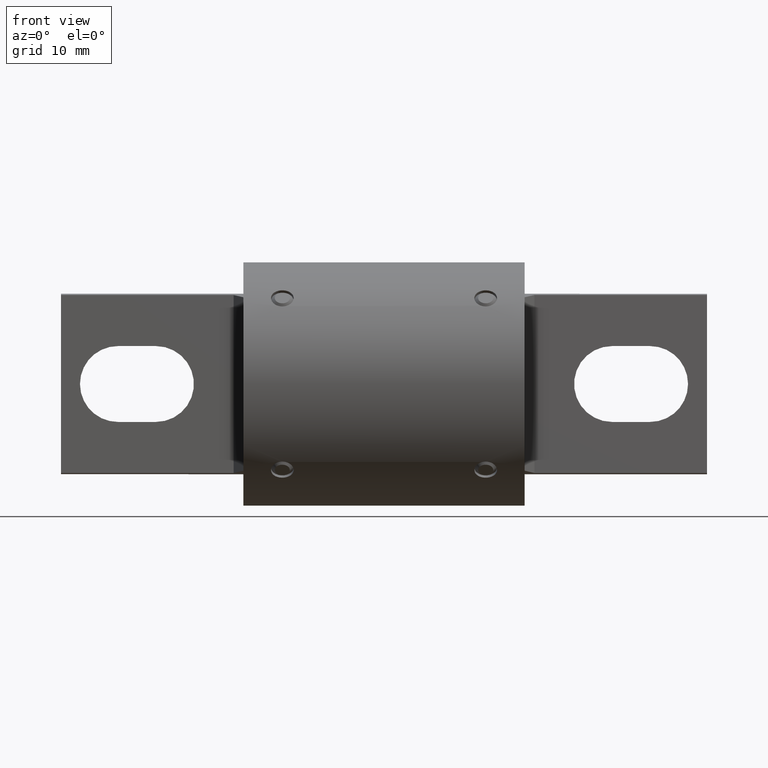
[diagram: clean part render]
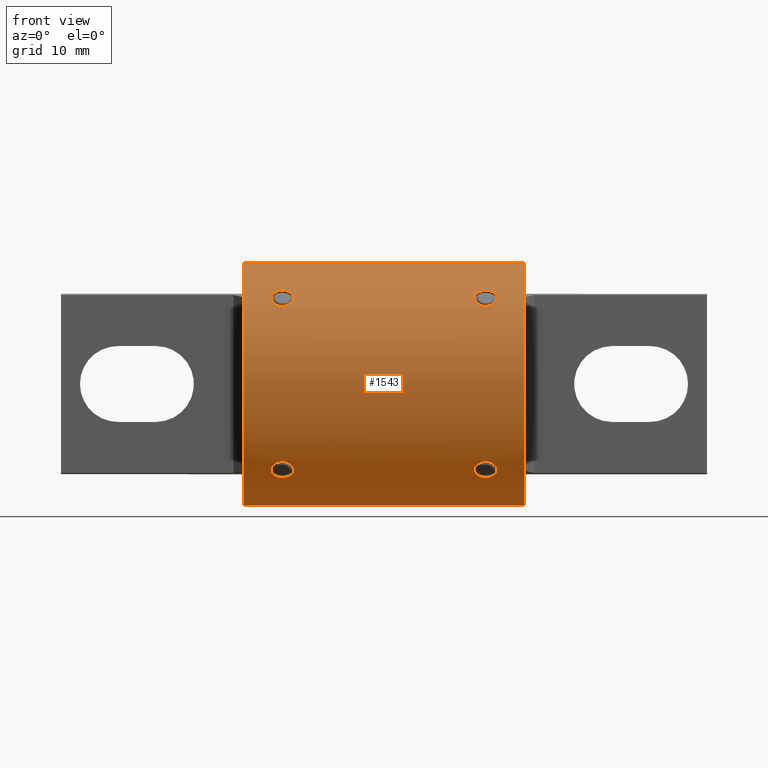
[diagram: same view with one face highlighted and labeled with its STEP entity id]
A machine part, front view. The second image highlights one B-rep face of the part: STEP entity #1543.
In plain terms, the highlighted cylindrical surface (partial cylindrical patch) has radius 12.7 mm, axis along (-1, -0, -0).
Its self-contained STEP definition (entity closure, byte-faithful):
#24 = FACE_BOUND ( 'NONE', #4443, .T. ) ;
#44 = CARTESIAN_POINT ( 'NONE',  ( 0.3944677947010658000, -0.3813228052171436200, 0.3234169151341029800 ) ) ;
#68 = CARTESIAN_POINT ( 'NONE',  ( -0.4468748784621186500, -0.3260412126489676800, 0.3790994276910557000 ) ) ;
#69 = CARTESIAN_POINT ( 'NONE',  ( 0.4180999999999999700, -0.3851418905577689800, -0.3188506298215317800 ) ) ;
#85 = CARTESIAN_POINT ( 'NONE',  ( 0.3944677947010658500, -0.3234169151340990900, -0.3813228052171469500 ) ) ;
#149 = ORIENTED_EDGE ( 'NONE', *, *, #4687, .F. ) ;
#177 = ORIENTED_EDGE ( 'NONE', *, *, #5175, .T. ) ;
#179 = CARTESIAN_POINT ( 'NONE',  ( 0.4649797884676673500, -0.3579061582054254800, 0.3492012578480499500 ) ) ;
#184 = CARTESIAN_POINT ( 'NONE',  ( -0.4180999999999999700, -0.3188506298215304500, -0.3851418905577701500 ) ) ;
#185 = CARTESIAN_POINT ( 'NONE',  ( 0.4649701833306483800, -0.3579569404096281100, -0.3491492021709419200 ) ) ;
#192 = EDGE_CURVE ( 'NONE', #4633, #4461, #1598, .T. ) ;
#205 = CARTESIAN_POINT ( 'NONE',  ( -0.4556273034645854100, -0.3733197307448354300, -0.3326433932274904800 ) ) ;
#262 = CARTESIAN_POINT ( 'NONE',  ( -0.4180999999999999200, -0.3851418905577667600, 0.3188506298215345000 ) ) ;
#265 = CARTESIAN_POINT ( 'NONE',  ( -0.4057473084892742100, -0.3198180067965569200, -0.3843461624909740900 ) ) ;
#373 = CARTESIAN_POINT ( 'NONE',  ( 0.4180999999999999700, -0.3188506298215304500, -0.3851418905577701500 ) ) ;
#381 = EDGE_CURVE ( 'NONE', #3641, #558, #2180, .T. ) ;
#398 = CARTESIAN_POINT ( 'NONE',  ( 0.4469494148999879600, -0.3260940860301482200, -0.3790533443462235100 ) ) ;
#405 = CARTESIAN_POINT ( 'NONE',  ( -0.3806119987300331500, -0.3733425342060931500, 0.3326171116410980300 ) ) ;
#446 = EDGE_CURVE ( 'NONE', #4461, #4633, #3035, .T. ) ;
#468 = CARTESIAN_POINT ( 'NONE',  ( 0.5780999999999999500, 0.0000000000000000000, 0.5000000000000000000 ) ) ;
#469 = CARTESIAN_POINT ( 'NONE',  ( 0.3806265758342109500, -0.3733551568638238100, 0.3326029144379404300 ) ) ;
#477 = CARTESIAN_POINT ( 'NONE',  ( -0.4303795581345331000, -0.3843623708052776300, 0.3197986095693312600 ) ) ;
#485 = CARTESIAN_POINT ( 'NONE',  ( -0.4057473084892742100, -0.3843461624909706400, 0.3198180067965608600 ) ) ;
#498 = CARTESIAN_POINT ( 'NONE',  ( -0.3771676171850029700, -0.3699063082191747500, -0.3364543442959049300 ) ) ;
#499 = CARTESIAN_POINT ( 'NONE',  ( -0.4303618332115015700, -0.3197948178100611900, 0.3843655152403495100 ) ) ;
#500 = CARTESIAN_POINT ( 'NONE',  ( 0.3944818595847876000, -0.3813281677303936900, -0.3234105800673970400 ) ) ;
#540 = DIRECTION ( 'NONE',  ( 0.0000000000000000000, 0.0000000000000000000, -1.000000000000000000 ) ) ;
#542 = EDGE_CURVE ( 'NONE', #755, #814, #2671, .T. ) ;
#558 = VERTEX_POINT ( 'NONE', #2237 ) ;
#563 = CARTESIAN_POINT ( 'NONE',  ( -0.4058120634262547500, -0.3198043786849212900, 0.3843574563774750400 ) ) ;
#599 = CARTESIAN_POINT ( 'NONE',  ( 0.4590644586123955900, -0.3698699448007831100, 0.3364944664965430200 ) ) ;
#607 = CARTESIAN_POINT ( 'NONE',  ( -0.4469304761330199500, -0.3260829876836042800, -0.3790628668080755500 ) ) ;
#625 = CARTESIAN_POINT ( 'NONE',  ( -0.4649727836622381000, -0.3492148569375020900, -0.3578916304014156900 ) ) ;
#669 = CARTESIAN_POINT ( 'NONE',  ( 0.4555467046549049300, -0.3733779895294406800, -0.3325772156917288200 ) ) ;
#706 = CARTESIAN_POINT ( 'NONE',  ( -0.4119811595538264100, -0.3188506298215277300, 0.3851418905577722600 ) ) ;
#743 = CARTESIAN_POINT ( 'NONE',  ( 0.4468987945994440900, -0.3790785663980416600, -0.3260646683710384800 ) ) ;
#755 = VERTEX_POINT ( 'NONE', #4100 ) ;
#814 = VERTEX_POINT ( 'NONE', #4061 ) ;
#833 = CARTESIAN_POINT ( 'NONE',  ( -0.3724357695896449200, -0.3621255142926018100, 0.3448150430999874500 ) ) ;
#870 = CARTESIAN_POINT ( 'NONE',  ( 0.3712227897960115300, -0.3492391303951684600, 0.3578679438257777500 ) ) ;
#871 = B_SPLINE_CURVE_WITH_KNOTS ( 'NONE', 3,
 ( #184, #3529, #4378, #1857, #607, #1470, #4396, #1876, #625, #3148, #5221, #2731, #205, #1070, #5240, #2331, #4414, #1896 ),
 .UNSPECIFIED., .F., .F.,
 ( 4, 2, 2, 2, 2, 2, 2, 2, 4 ),
 ( 0.0000000000000000000, 0.0004655599652297695300, 0.0009311199304595390600, 0.001396679895689308600, 0.001862239860919078100, 0.002327799826148847400, 0.002793359791378617200, 0.003258919756608386900, 0.003724479721838156200 ),
 .UNSPECIFIED. ) ;
#888 = EDGE_CURVE ( 'NONE', #814, #755, #1891, .T. ) ;
#916 = CARTESIAN_POINT ( 'NONE',  ( -0.4469304761330200000, -0.3790628668080721100, 0.3260829876836082700 ) ) ;
#933 = CARTESIAN_POINT ( 'NONE',  ( -0.3892505851000119800, -0.3260940860301481700, -0.3790533443462236800 ) ) ;
#935 = CARTESIAN_POINT ( 'NONE',  ( -0.4180999999999999700, -0.3188506298215277300, 0.3851418905577722600 ) ) ;
#938 = CARTESIAN_POINT ( 'NONE',  ( 0.3805726965354145300, -0.3733197307448355400, -0.3326433932274904800 ) ) ;
#1044 = CARTESIAN_POINT ( 'NONE',  ( 0.4469494148999880200, -0.3790533443462202300, 0.3260940860301521100 ) ) ;
#1070 = CARTESIAN_POINT ( 'NONE',  ( -0.4468748784621186500, -0.3790994276910521500, -0.3260412126489716200 ) ) ;
#1094 = VERTEX_POINT ( 'NONE', #3028 ) ;
#1122 = CARTESIAN_POINT ( 'NONE',  ( -0.4180999999999999700, -0.3851418905577689800, -0.3188506298215317800 ) ) ;
#1180 = CARTESIAN_POINT ( 'NONE',  ( 0.4303879365737454100, -0.3843574563774716000, -0.3198043786849253900 ) ) ;
#1220 = VERTEX_POINT ( 'NONE', #373 ) ;
#1272 = ORIENTED_EDGE ( 'NONE', *, *, #888, .T. ) ;
#1308 = CARTESIAN_POINT ( 'NONE',  ( 0.3771372612426290800, -0.3364926762823749500, 0.3698715371687939000 ) ) ;
#1321 = CARTESIAN_POINT ( 'NONE',  ( 0.3944818595847876000, -0.3234105800673930900, 0.3813281677303970200 ) ) ;
#1328 = CARTESIAN_POINT ( 'NONE',  ( -0.4590651474510381600, -0.3698616727150820800, 0.3365028978427094800 ) ) ;
#1352 = CARTESIAN_POINT ( 'NONE',  ( 0.3724379847815536500, -0.3621304051781934500, -0.3448098676731264900 ) ) ;
#1418 = DIRECTION ( 'NONE',  ( 0.0000000000000000000, 0.0000000000000000000, -1.000000000000000000 ) ) ;
#1443 = CARTESIAN_POINT ( 'NONE',  ( 0.4242188404461735800, -0.3188506298215277300, 0.3851418905577722600 ) ) ;
#1470 = CARTESIAN_POINT ( 'NONE',  ( -0.4555734241657890000, -0.3326029144379364900, -0.3733551568638271400 ) ) ;
#1525 = CARTESIAN_POINT ( 'NONE',  ( -0.4058120634262547500, -0.3843574563774716000, -0.3198043786849253900 ) ) ;
#1543 = ADVANCED_FACE ( 'NONE', ( #5183, #4735, #4588, #24, #2694 ), #1643, .T. ) ;
#1598 = B_SPLINE_CURVE_WITH_KNOTS ( 'NONE', 3,
 ( #2605, #706, #563, #4356, #4769, #4986, #4962, #4951, #3298, #4119, #833, #4184, #405, #1831, #3427, #485, #4676, #3586 ),
 .UNSPECIFIED., .F., .F.,
 ( 4, 2, 2, 2, 2, 2, 2, 2, 4 ),
 ( 0.003724479721838157100, 0.004189930971068124000, 0.004655382220298091000, 0.005120833469528057000, 0.005586284718758024000, 0.006051735967987990900, 0.006517187217217957800, 0.006982638466447924800, 0.007448089715677891700 ),
 .UNSPECIFIED. ) ;
#1632 = LINE ( 'NONE', #2886, #3145 ) ;
#1643 = CYLINDRICAL_SURFACE ( 'NONE', #2975, 0.5000000000000000000 ) ;
#1716 = CARTESIAN_POINT ( 'NONE',  ( 0.4119020554580386500, -0.3851418905577666500, 0.3188506298215343400 ) ) ;
#1730 = CARTESIAN_POINT ( 'NONE',  ( 0.3712272163377619000, -0.3578916304014119800, 0.3492148569375058100 ) ) ;
#1740 = CARTESIAN_POINT ( 'NONE',  ( -0.4649727836622381000, -0.3578916304014120300, 0.3492148569375057600 ) ) ;
#1755 = CARTESIAN_POINT ( 'NONE',  ( 0.3712272163377619000, -0.3492148569375020900, -0.3578916304014156900 ) ) ;
#1823 = DIRECTION ( 'NONE',  ( 0.0000000000000000000, 0.0000000000000000000, 1.000000000000000000 ) ) ;
#1831 = CARTESIAN_POINT ( 'NONE',  ( -0.3892505851000118700, -0.3790533443462202300, 0.3260940860301521100 ) ) ;
#1844 = CARTESIAN_POINT ( 'NONE',  ( 0.4468987945994440400, -0.3260646683710344800, 0.3790785663980450500 ) ) ;
#1857 = CARTESIAN_POINT ( 'NONE',  ( -0.4417322052989340300, -0.3234169151340990900, -0.3813228052171469500 ) ) ;
#1858 = CARTESIAN_POINT ( 'NONE',  ( 0.4649797884676673500, -0.3492012578480461800, -0.3579061582054290900 ) ) ;
#1870 = EDGE_LOOP ( 'NONE', ( #4658, #5140 ) ) ;
#1876 = CARTESIAN_POINT ( 'NONE',  ( -0.4637408112963543600, -0.3447664045887661700, -0.3621712073965497300 ) ) ;
#1891 = B_SPLINE_CURVE_WITH_KNOTS ( 'NONE', 3,
 ( #4244, #1716, #2575, #44, #2985, #469, #3411, #2177, #1730, #870, #5059, #1308, #2960, #3806, #1321, #2945, #4259, #4615 ),
 .UNSPECIFIED., .F., .F.,
 ( 4, 2, 2, 2, 2, 2, 2, 2, 4 ),
 ( 1.734723475976807100E-018, 0.0004655599652297711000, 0.0009311199304595404700, 0.001396679895689309900, 0.001862239860919079200, 0.002327799826148848700, 0.002793359791378618100, 0.003258919756608387400, 0.003724479721838156700 ),
 .UNSPECIFIED. ) ;
#1896 = CARTESIAN_POINT ( 'NONE',  ( -0.4180999999999999700, -0.3851418905577689800, -0.3188506298215317800 ) ) ;
#1897 = CARTESIAN_POINT ( 'NONE',  ( 0.4242188404461737000, -0.3851418905577690400, -0.3188506298215316700 ) ) ;
#1932 = CARTESIAN_POINT ( 'NONE',  ( -0.3712202115323325900, -0.3492012578480462300, -0.3579061582054290900 ) ) ;
#2024 = ORIENTED_EDGE ( 'NONE', *, *, #2637, .T. ) ;
#2060 = CARTESIAN_POINT ( 'NONE',  ( 0.4180999999999999700, -0.3851418905577689800, -0.3188506298215317800 ) ) ;
#2149 = CARTESIAN_POINT ( 'NONE',  ( -0.3893012054005559100, -0.3790785663980416600, -0.3260646683710384800 ) ) ;
#2177 = CARTESIAN_POINT ( 'NONE',  ( 0.3724591887036456400, -0.3621712073965460700, 0.3447664045887699500 ) ) ;
#2180 = LINE ( 'NONE', #3799, #5228 ) ;
#2182 = AXIS2_PLACEMENT_3D ( 'NONE', #4746, #3950, #540 ) ;
#2187 = CARTESIAN_POINT ( 'NONE',  ( -0.4637620152184464000, -0.3448098676731227200, 0.3621304051781970000 ) ) ;
#2204 = CARTESIAN_POINT ( 'NONE',  ( 0.3771348525489619500, -0.3365028978427054800, -0.3698616727150856300 ) ) ;
#2217 = EDGE_LOOP ( 'NONE', ( #1272, #5188 ) ) ;
#2237 = CARTESIAN_POINT ( 'NONE',  ( -0.5780999999999999500, 0.0000000000000000000, 0.5000000000000000000 ) ) ;
#2251 = CARTESIAN_POINT ( 'NONE',  ( 0.4180999999999999700, -0.3188506298215277300, 0.3851418905577722600 ) ) ;
#2285 = CARTESIAN_POINT ( 'NONE',  ( 0.4590323828149970300, -0.3364543442959010400, 0.3699063082191781900 ) ) ;
#2289 = CARTESIAN_POINT ( 'NONE',  ( 0.4242964972187636100, -0.3851418905577667100, 0.3188506298215344500 ) ) ;
#2292 = CARTESIAN_POINT ( 'NONE',  ( 0.4590323828149969800, -0.3699063082191747500, -0.3364543442959049300 ) ) ;
#2302 = CARTESIAN_POINT ( 'NONE',  ( -0.4180999999999999700, -0.3188506298215277300, 0.3851418905577722600 ) ) ;
#2331 = CARTESIAN_POINT ( 'NONE',  ( -0.4303618332115015700, -0.3843655152403460700, -0.3197948178100652500 ) ) ;
#2370 = CARTESIAN_POINT ( 'NONE',  ( -0.3724357695896446900, -0.3448150430999836800, -0.3621255142926054200 ) ) ;
#2397 = VERTEX_POINT ( 'NONE', #1122 ) ;
#2485 = CARTESIAN_POINT ( 'NONE',  ( 0.4590644586123956400, -0.3364944664965393000, -0.3698699448007866700 ) ) ;
#2500 = CARTESIAN_POINT ( 'NONE',  ( 0.4242964972187636100, -0.3188506298215304000, -0.3851418905577701500 ) ) ;
#2575 = CARTESIAN_POINT ( 'NONE',  ( 0.4058204418654670600, -0.3843623708052776300, 0.3197986095693312600 ) ) ;
#2583 = CARTESIAN_POINT ( 'NONE',  ( -0.4180999999999999200, -0.3851418905577667600, 0.3188506298215345000 ) ) ;
#2601 = CARTESIAN_POINT ( 'NONE',  ( -0.4556273034645854100, -0.3326433932274866500, 0.3733197307448389800 ) ) ;
#2602 = CARTESIAN_POINT ( 'NONE',  ( 0.4119797303690132000, -0.3851418905577689300, -0.3188506298215316700 ) ) ;
#2605 = CARTESIAN_POINT ( 'NONE',  ( -0.4180999999999999700, -0.3188506298215277300, 0.3851418905577722600 ) ) ;
#2624 = CARTESIAN_POINT ( 'NONE',  ( 0.3892695238669799400, -0.3260829876836042800, -0.3790628668080755500 ) ) ;
#2637 = EDGE_CURVE ( 'NONE', #558, #3566, #2816, .T. ) ;
#2671 = B_SPLINE_CURVE_WITH_KNOTS ( 'NONE', 3,
 ( #2251, #1443, #3935, #4371, #1844, #4787, #2285, #5192, #2701, #179, #3118, #599, #3539, #1044, #4375, #4791, #2289, #3941 ),
 .UNSPECIFIED., .F., .F.,
 ( 4, 2, 2, 2, 2, 2, 2, 2, 4 ),
 ( 0.003724479721838156700, 0.004189930971068123200, 0.004655382220298090100, 0.005120833469528057000, 0.005586284718758023100, 0.006051735967987990000, 0.006517187217217956100, 0.006982638466447923000, 0.007448089715677890000 ),
 .UNSPECIFIED. ) ;
#2694 = FACE_BOUND ( 'NONE', #4992, .T. ) ;
#2701 = CARTESIAN_POINT ( 'NONE',  ( 0.4649701833306484300, -0.3491492021709382600, 0.3579569404096317200 ) ) ;
#2731 = CARTESIAN_POINT ( 'NONE',  ( -0.4590627387573708000, -0.3698715371687901800, -0.3364926762823788300 ) ) ;
#2761 = CARTESIAN_POINT ( 'NONE',  ( -0.3944732402136510400, -0.3234191148751908700, -0.3813208704309386500 ) ) ;
#2788 = CARTESIAN_POINT ( 'NONE',  ( -0.5780999999999999500, 0.0000000000000000000, 0.0000000000000000000 ) ) ;
#2792 = VERTEX_POINT ( 'NONE', #2948 ) ;
#2816 = CIRCLE ( 'NONE', #3570, 0.5000000000000000000 ) ;
#2839 = CARTESIAN_POINT ( 'NONE',  ( 0.5780999999999999500, 6.123233995736764800E-017, -0.5000000000000000000 ) ) ;
#2881 = B_SPLINE_CURVE_WITH_KNOTS ( 'NONE', 3,
 ( #4162, #3758, #3031, #85, #2624, #5107, #2204, #4695, #1755, #4283, #1352, #3858, #938, #3440, #500, #3012, #2602, #69 ),
 .UNSPECIFIED., .F., .F.,
 ( 4, 2, 2, 2, 2, 2, 2, 2, 4 ),
 ( 0.0000000000000000000, 0.0004655599652297696400, 0.0009311199304595392800, 0.001396679895689308800, 0.001862239860919078600, 0.002327799826148848300, 0.002793359791378617600, 0.003258919756608387400, 0.003724479721838157100 ),
 .UNSPECIFIED. ) ;
#2886 = CARTESIAN_POINT ( 'NONE',  ( 0.5780999999999999500, 6.123233995736764800E-017, -0.5000000000000000000 ) ) ;
#2909 = CARTESIAN_POINT ( 'NONE',  ( 0.4417267597863487900, -0.3234191148751907600, -0.3813208704309386500 ) ) ;
#2945 = CARTESIAN_POINT ( 'NONE',  ( 0.4058381667884983800, -0.3197948178100611900, 0.3843655152403495100 ) ) ;
#2948 = CARTESIAN_POINT ( 'NONE',  ( 0.4180999999999999700, -0.3851418905577689800, -0.3188506298215317800 ) ) ;
#2960 = CARTESIAN_POINT ( 'NONE',  ( 0.3805726965354145300, -0.3326433932274866500, 0.3733197307448389800 ) ) ;
#2963 = CIRCLE ( 'NONE', #2182, 0.5000000000000000000 ) ;
#2965 = CARTESIAN_POINT ( 'NONE',  ( -0.4119035027812363300, -0.3188506298215304500, -0.3851418905577701500 ) ) ;
#2975 = AXIS2_PLACEMENT_3D ( 'NONE', #4778, #4758, #1823 ) ;
#2985 = CARTESIAN_POINT ( 'NONE',  ( 0.3892695238669799400, -0.3790628668080721100, 0.3260829876836082200 ) ) ;
#3010 = CARTESIAN_POINT ( 'NONE',  ( -0.4417181404152123500, -0.3234105800673930900, 0.3813281677303970200 ) ) ;
#3012 = CARTESIAN_POINT ( 'NONE',  ( 0.4058381667884983800, -0.3843655152403460700, -0.3197948178100652500 ) ) ;
#3028 = CARTESIAN_POINT ( 'NONE',  ( -0.4180999999999999700, -0.3188506298215304500, -0.3851418905577701500 ) ) ;
#3031 = CARTESIAN_POINT ( 'NONE',  ( 0.4058204418654671200, -0.3197986095693272600, -0.3843623708052809100 ) ) ;
#3035 = B_SPLINE_CURVE_WITH_KNOTS ( 'NONE', 3,
 ( #2583, #5070, #477, #3419, #916, #3844, #1328, #4269, #1740, #4670, #2187, #5088, #2601, #68, #3010, #499, #3439, #935 ),
 .UNSPECIFIED., .F., .F.,
 ( 4, 2, 2, 2, 2, 2, 2, 2, 4 ),
 ( 1.734723475976807100E-018, 0.0004655599652297711600, 0.0009311199304595405800, 0.001396679895689310100, 0.001862239860919079400, 0.002327799826148848700, 0.002793359791378618500, 0.003258919756608387800, 0.003724479721838157100 ),
 .UNSPECIFIED. ) ;
#3118 = CARTESIAN_POINT ( 'NONE',  ( 0.4637642304103551900, -0.3621255142926018100, 0.3448150430999873400 ) ) ;
#3145 = VECTOR ( 'NONE', #3745, 39.37007874015748100 ) ;
#3148 = CARTESIAN_POINT ( 'NONE',  ( -0.4649772102039884100, -0.3578679438257741400, -0.3492391303951721800 ) ) ;
#3223 = B_SPLINE_CURVE_WITH_KNOTS ( 'NONE', 3,
 ( #4488, #4055, #1525, #4017, #2149, #4315, #498, #4863, #5255, #1932, #2370, #5283, #4712, #933, #2761, #265, #2965, #3242 ),
 .UNSPECIFIED., .F., .F.,
 ( 4, 2, 2, 2, 2, 2, 2, 2, 4 ),
 ( 0.003724479721838156200, 0.004189930971068123200, 0.004655382220298090100, 0.005120833469528057000, 0.005586284718758024000, 0.006051735967987990900, 0.006517187217217958700, 0.006982638466447925600, 0.007448089715677892600 ),
 .UNSPECIFIED. ) ;
#3242 = CARTESIAN_POINT ( 'NONE',  ( -0.4180999999999999700, -0.3188506298215304500, -0.3851418905577701500 ) ) ;
#3291 = B_SPLINE_CURVE_WITH_KNOTS ( 'NONE', 3,
 ( #2060, #1897, #1180, #3698, #743, #669, #2292, #4793, #185, #1858, #4965, #2485, #3340, #398, #2909, #5410, #2500, #4983 ),
 .UNSPECIFIED., .F., .F.,
 ( 4, 2, 2, 2, 2, 2, 2, 2, 4 ),
 ( 0.003724479721838157100, 0.004189930971068124000, 0.004655382220298091000, 0.005120833469528057000, 0.005586284718758024000, 0.006051735967987990900, 0.006517187217217957800, 0.006982638466447924800, 0.007448089715677891700 ),
 .UNSPECIFIED. ) ;
#3298 = CARTESIAN_POINT ( 'NONE',  ( -0.3712298166693516200, -0.3491492021709382600, 0.3579569404096316600 ) ) ;
#3340 = CARTESIAN_POINT ( 'NONE',  ( 0.4555880012699668500, -0.3326171116410941400, -0.3733425342060964200 ) ) ;
#3411 = CARTESIAN_POINT ( 'NONE',  ( 0.3771348525489619500, -0.3698616727150820800, 0.3365028978427094300 ) ) ;
#3419 = CARTESIAN_POINT ( 'NONE',  ( -0.4417322052989340300, -0.3813228052171436200, 0.3234169151341030900 ) ) ;
#3427 = CARTESIAN_POINT ( 'NONE',  ( -0.3944732402136510400, -0.3813208704309353800, 0.3234191148751948100 ) ) ;
#3439 = CARTESIAN_POINT ( 'NONE',  ( -0.4242202696309868000, -0.3188506298215277900, 0.3851418905577723200 ) ) ;
#3440 = CARTESIAN_POINT ( 'NONE',  ( 0.3893251215378810700, -0.3790994276910523700, -0.3260412126489717900 ) ) ;
#3516 = ORIENTED_EDGE ( 'NONE', *, *, #381, .T. ) ;
#3529 = CARTESIAN_POINT ( 'NONE',  ( -0.4242979445419614000, -0.3188506298215304000, -0.3851418905577699300 ) ) ;
#3539 = CARTESIAN_POINT ( 'NONE',  ( 0.4555880012699669600, -0.3733425342060931500, 0.3326171116410981400 ) ) ;
#3566 = VERTEX_POINT ( 'NONE', #4345 ) ;
#3570 = AXIS2_PLACEMENT_3D ( 'NONE', #2788, #3906, #1418 ) ;
#3586 = CARTESIAN_POINT ( 'NONE',  ( -0.4180999999999999200, -0.3851418905577667600, 0.3188506298215345000 ) ) ;
#3641 = VERTEX_POINT ( 'NONE', #468 ) ;
#3698 = CARTESIAN_POINT ( 'NONE',  ( 0.4416704913449731000, -0.3813419871331882900, -0.3233941615866346400 ) ) ;
#3745 = DIRECTION ( 'NONE',  ( -1.000000000000000000, -0.0000000000000000000, -0.0000000000000000000 ) ) ;
#3758 = CARTESIAN_POINT ( 'NONE',  ( 0.4119020554580387600, -0.3188506298215304000, -0.3851418905577699300 ) ) ;
#3799 = CARTESIAN_POINT ( 'NONE',  ( 0.5780999999999999500, 0.0000000000000000000, 0.5000000000000000000 ) ) ;
#3806 = CARTESIAN_POINT ( 'NONE',  ( 0.3893251215378810100, -0.3260412126489676800, 0.3790994276910557000 ) ) ;
#3817 = ORIENTED_EDGE ( 'NONE', *, *, #3915, .T. ) ;
#3844 = CARTESIAN_POINT ( 'NONE',  ( -0.4555734241657890000, -0.3733551568638238100, 0.3326029144379403800 ) ) ;
#3858 = CARTESIAN_POINT ( 'NONE',  ( 0.3771372612426291400, -0.3698715371687901800, -0.3364926762823788300 ) ) ;
#3873 = EDGE_LOOP ( 'NONE', ( #149, #4834, #3516, #2024 ) ) ;
#3906 = DIRECTION ( 'NONE',  ( 1.000000000000000000, 0.0000000000000000000, 0.0000000000000000000 ) ) ;
#3915 = EDGE_CURVE ( 'NONE', #2792, #1220, #3291, .T. ) ;
#3935 = CARTESIAN_POINT ( 'NONE',  ( 0.4303879365737454700, -0.3198043786849212900, 0.3843574563774750400 ) ) ;
#3940 = VERTEX_POINT ( 'NONE', #2839 ) ;
#3941 = CARTESIAN_POINT ( 'NONE',  ( 0.4181000000000000300, -0.3851418905577667600, 0.3188506298215345000 ) ) ;
#3950 = DIRECTION ( 'NONE',  ( 1.000000000000000000, 0.0000000000000000000, 0.0000000000000000000 ) ) ;
#3964 = EDGE_CURVE ( 'NONE', #1220, #2792, #2881, .T. ) ;
#3992 = ORIENTED_EDGE ( 'NONE', *, *, #3964, .T. ) ;
#4017 = CARTESIAN_POINT ( 'NONE',  ( -0.3945295086550267300, -0.3813419871331882900, -0.3233941615866346400 ) ) ;
#4055 = CARTESIAN_POINT ( 'NONE',  ( -0.4119811595538264100, -0.3851418905577690400, -0.3188506298215316700 ) ) ;
#4061 = CARTESIAN_POINT ( 'NONE',  ( 0.4181000000000000300, -0.3851418905577667600, 0.3188506298215345000 ) ) ;
#4100 = CARTESIAN_POINT ( 'NONE',  ( 0.4180999999999999700, -0.3188506298215277300, 0.3851418905577722600 ) ) ;
#4119 = CARTESIAN_POINT ( 'NONE',  ( -0.3712202115323325900, -0.3579061582054254800, 0.3492012578480499500 ) ) ;
#4141 = EDGE_CURVE ( 'NONE', #3641, #3940, #2963, .T. ) ;
#4162 = CARTESIAN_POINT ( 'NONE',  ( 0.4180999999999999700, -0.3188506298215304500, -0.3851418905577701500 ) ) ;
#4184 = CARTESIAN_POINT ( 'NONE',  ( -0.3771355413876043000, -0.3698699448007831100, 0.3364944664965431300 ) ) ;
#4244 = CARTESIAN_POINT ( 'NONE',  ( 0.4181000000000000300, -0.3851418905577667600, 0.3188506298215345000 ) ) ;
#4259 = CARTESIAN_POINT ( 'NONE',  ( 0.4119797303690132000, -0.3188506298215277900, 0.3851418905577723200 ) ) ;
#4269 = CARTESIAN_POINT ( 'NONE',  ( -0.4637408112963543600, -0.3621712073965460100, 0.3447664045887700000 ) ) ;
#4283 = CARTESIAN_POINT ( 'NONE',  ( 0.3712227897960115300, -0.3578679438257741400, -0.3492391303951721800 ) ) ;
#4315 = CARTESIAN_POINT ( 'NONE',  ( -0.3806532953450949600, -0.3733779895294406800, -0.3325772156917288200 ) ) ;
#4345 = CARTESIAN_POINT ( 'NONE',  ( -0.5780999999999999500, 6.123233995736764800E-017, -0.5000000000000000000 ) ) ;
#4356 = CARTESIAN_POINT ( 'NONE',  ( -0.3945295086550267800, -0.3233941615866307600, 0.3813419871331915600 ) ) ;
#4371 = CARTESIAN_POINT ( 'NONE',  ( 0.4416704913449731000, -0.3233941615866307600, 0.3813419871331915600 ) ) ;
#4375 = CARTESIAN_POINT ( 'NONE',  ( 0.4417267597863487900, -0.3813208704309353800, 0.3234191148751948100 ) ) ;
#4378 = CARTESIAN_POINT ( 'NONE',  ( -0.4303795581345328800, -0.3197986095693272600, -0.3843623708052809100 ) ) ;
#4396 = CARTESIAN_POINT ( 'NONE',  ( -0.4590651474510381600, -0.3365028978427054800, -0.3698616727150856300 ) ) ;
#4414 = CARTESIAN_POINT ( 'NONE',  ( -0.4242202696309868000, -0.3851418905577689300, -0.3188506298215316700 ) ) ;
#4443 = EDGE_LOOP ( 'NONE', ( #4805, #177 ) ) ;
#4461 = VERTEX_POINT ( 'NONE', #262 ) ;
#4488 = CARTESIAN_POINT ( 'NONE',  ( -0.4180999999999999700, -0.3851418905577689800, -0.3188506298215317800 ) ) ;
#4576 = DIRECTION ( 'NONE',  ( -1.000000000000000000, -0.0000000000000000000, -0.0000000000000000000 ) ) ;
#4588 = FACE_BOUND ( 'NONE', #2217, .T. ) ;
#4615 = CARTESIAN_POINT ( 'NONE',  ( 0.4180999999999999700, -0.3188506298215277300, 0.3851418905577722600 ) ) ;
#4633 = VERTEX_POINT ( 'NONE', #2302 ) ;
#4658 = ORIENTED_EDGE ( 'NONE', *, *, #446, .T. ) ;
#4670 = CARTESIAN_POINT ( 'NONE',  ( -0.4649772102039884100, -0.3492391303951685200, 0.3578679438257778600 ) ) ;
#4676 = CARTESIAN_POINT ( 'NONE',  ( -0.4119035027812363300, -0.3851418905577667100, 0.3188506298215344500 ) ) ;
#4687 = EDGE_CURVE ( 'NONE', #3940, #3566, #1632, .T. ) ;
#4695 = CARTESIAN_POINT ( 'NONE',  ( 0.3724591887036456400, -0.3447664045887661700, -0.3621712073965497300 ) ) ;
#4712 = CARTESIAN_POINT ( 'NONE',  ( -0.3806119987300331000, -0.3326171116410942000, -0.3733425342060964200 ) ) ;
#4735 = FACE_BOUND ( 'NONE', #1870, .T. ) ;
#4746 = CARTESIAN_POINT ( 'NONE',  ( 0.5780999999999999500, 0.0000000000000000000, 0.0000000000000000000 ) ) ;
#4758 = DIRECTION ( 'NONE',  ( -1.000000000000000000, -0.0000000000000000000, -0.0000000000000000000 ) ) ;
#4769 = CARTESIAN_POINT ( 'NONE',  ( -0.3893012054005559100, -0.3260646683710344800, 0.3790785663980450500 ) ) ;
#4778 = CARTESIAN_POINT ( 'NONE',  ( 0.5780999999999999500, 0.0000000000000000000, 0.0000000000000000000 ) ) ;
#4787 = CARTESIAN_POINT ( 'NONE',  ( 0.4555467046549048800, -0.3325772156917249900, 0.3733779895294442300 ) ) ;
#4791 = CARTESIAN_POINT ( 'NONE',  ( 0.4304526915107255700, -0.3843461624909706400, 0.3198180067965608600 ) ) ;
#4793 = CARTESIAN_POINT ( 'NONE',  ( 0.4637441906202285400, -0.3621748468371747100, -0.3447630823832439900 ) ) ;
#4805 = ORIENTED_EDGE ( 'NONE', *, *, #5271, .T. ) ;
#4834 = ORIENTED_EDGE ( 'NONE', *, *, #4141, .F. ) ;
#4863 = CARTESIAN_POINT ( 'NONE',  ( -0.3724558093797713000, -0.3621748468371746000, -0.3447630823832439900 ) ) ;
#4951 = CARTESIAN_POINT ( 'NONE',  ( -0.3724558093797714100, -0.3447630823832401000, 0.3621748468371784300 ) ) ;
#4962 = CARTESIAN_POINT ( 'NONE',  ( -0.3771676171850030800, -0.3364543442959010400, 0.3699063082191782500 ) ) ;
#4965 = CARTESIAN_POINT ( 'NONE',  ( 0.4637642304103551900, -0.3448150430999837300, -0.3621255142926054200 ) ) ;
#4983 = CARTESIAN_POINT ( 'NONE',  ( 0.4180999999999999700, -0.3188506298215304500, -0.3851418905577701500 ) ) ;
#4986 = CARTESIAN_POINT ( 'NONE',  ( -0.3806532953450950100, -0.3325772156917249900, 0.3733779895294442300 ) ) ;
#4992 = EDGE_LOOP ( 'NONE', ( #3992, #3817 ) ) ;
#5059 = CARTESIAN_POINT ( 'NONE',  ( 0.3724379847815536500, -0.3448098676731227200, 0.3621304051781970600 ) ) ;
#5070 = CARTESIAN_POINT ( 'NONE',  ( -0.4242979445419614600, -0.3851418905577666500, 0.3188506298215343400 ) ) ;
#5088 = CARTESIAN_POINT ( 'NONE',  ( -0.4590627387573708000, -0.3364926762823749500, 0.3698715371687939000 ) ) ;
#5107 = CARTESIAN_POINT ( 'NONE',  ( 0.3806265758342109500, -0.3326029144379364900, -0.3733551568638271400 ) ) ;
#5140 = ORIENTED_EDGE ( 'NONE', *, *, #192, .T. ) ;
#5175 = EDGE_CURVE ( 'NONE', #2397, #1094, #3223, .T. ) ;
#5183 = FACE_OUTER_BOUND ( 'NONE', #3873, .T. ) ;
#5188 = ORIENTED_EDGE ( 'NONE', *, *, #542, .T. ) ;
#5192 = CARTESIAN_POINT ( 'NONE',  ( 0.4637441906202285400, -0.3447630823832401000, 0.3621748468371782700 ) ) ;
#5221 = CARTESIAN_POINT ( 'NONE',  ( -0.4637620152184464000, -0.3621304051781934500, -0.3448098676731264900 ) ) ;
#5228 = VECTOR ( 'NONE', #4576, 39.37007874015748100 ) ;
#5240 = CARTESIAN_POINT ( 'NONE',  ( -0.4417181404152123500, -0.3813281677303936900, -0.3234105800673971500 ) ) ;
#5255 = CARTESIAN_POINT ( 'NONE',  ( -0.3712298166693515600, -0.3579569404096281100, -0.3491492021709419200 ) ) ;
#5271 = EDGE_CURVE ( 'NONE', #1094, #2397, #871, .T. ) ;
#5283 = CARTESIAN_POINT ( 'NONE',  ( -0.3771355413876043000, -0.3364944664965391900, -0.3698699448007866700 ) ) ;
#5410 = CARTESIAN_POINT ( 'NONE',  ( 0.4304526915107255700, -0.3198180067965568100, -0.3843461624909740900 ) ) ;